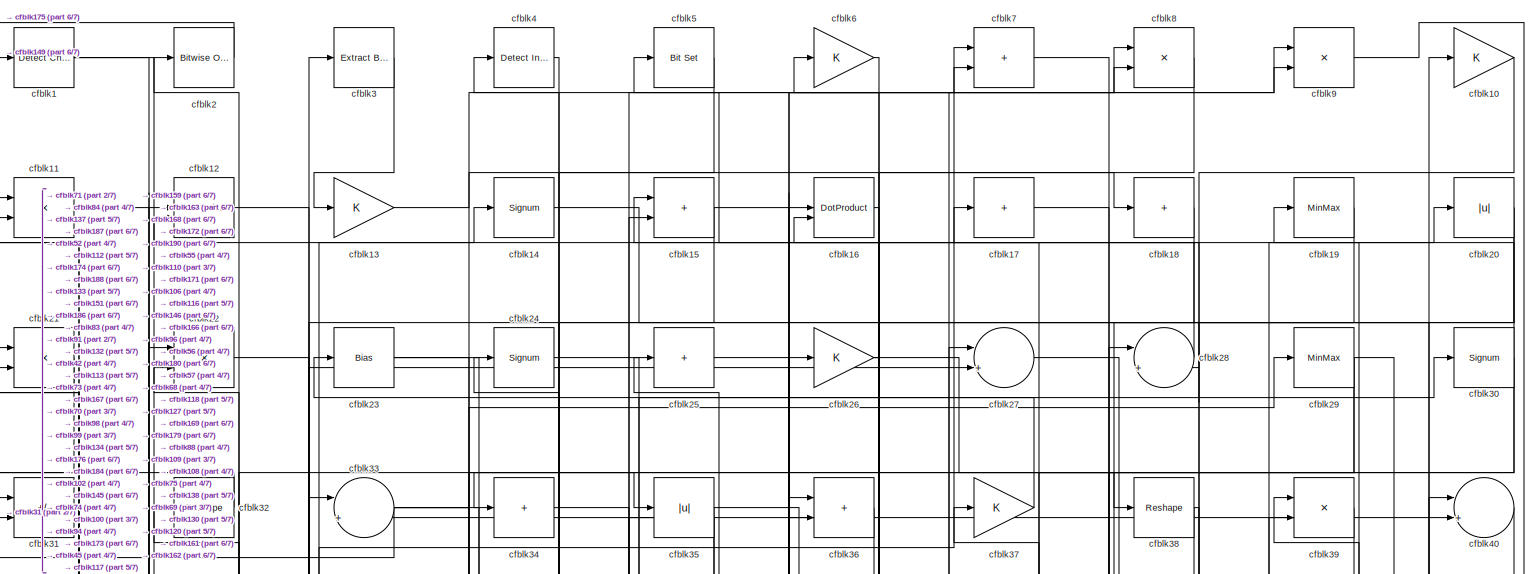
[diagram: root canvas - part 1/7, full width, top band]
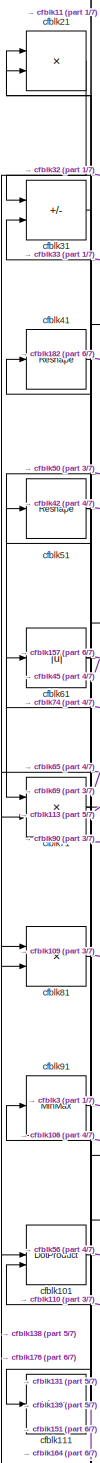
[diagram: root canvas - part 2/7, middle left region]
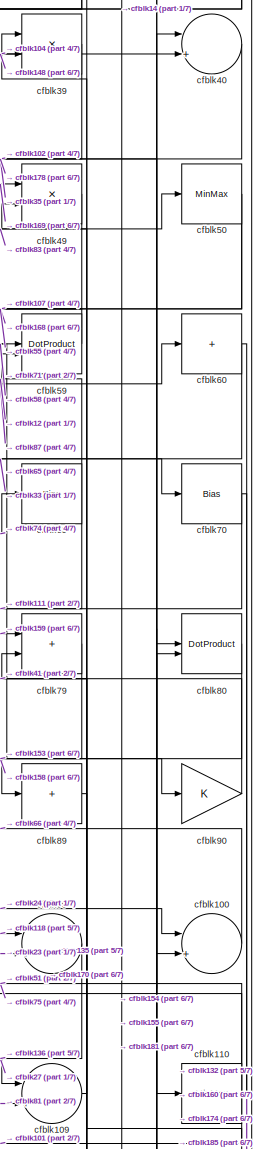
[diagram: root canvas - part 3/7, middle right region]
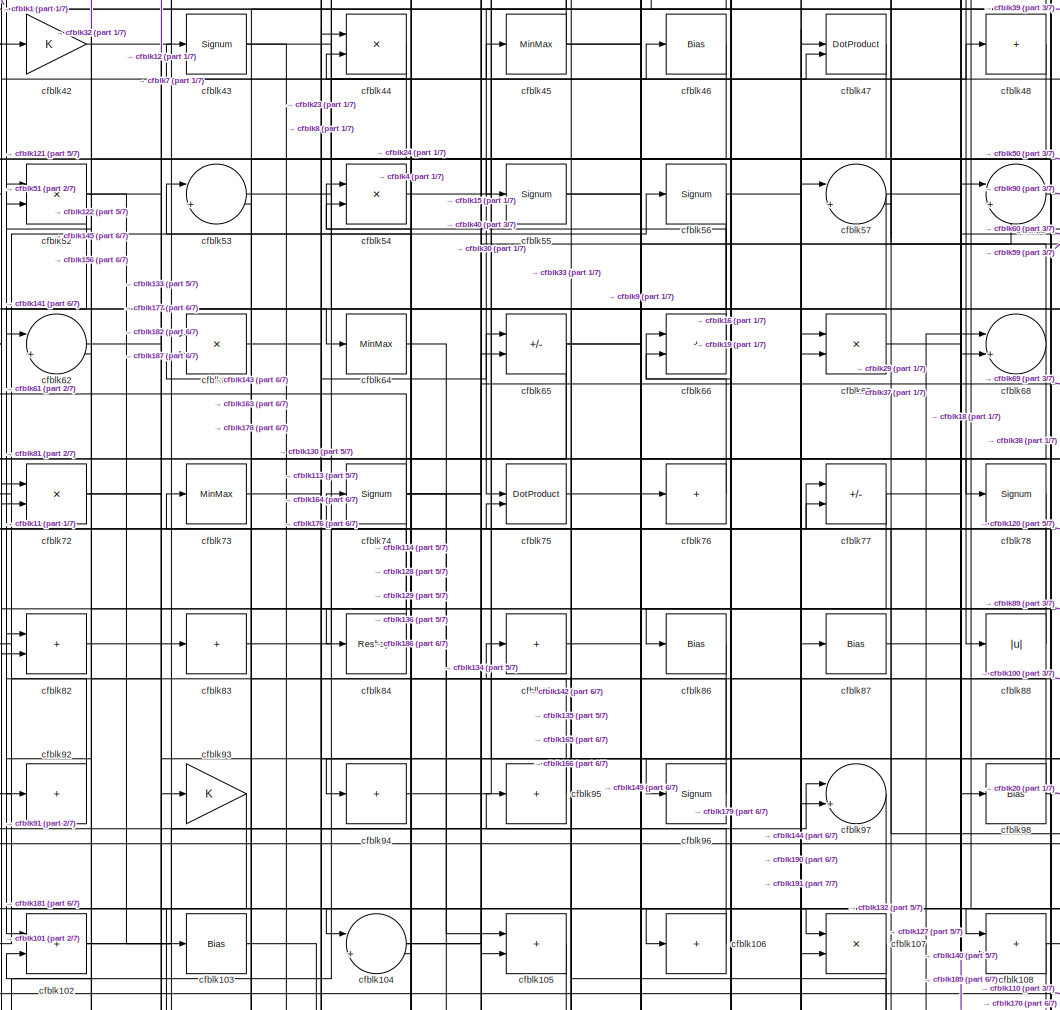
[diagram: root canvas - part 4/7, central region]
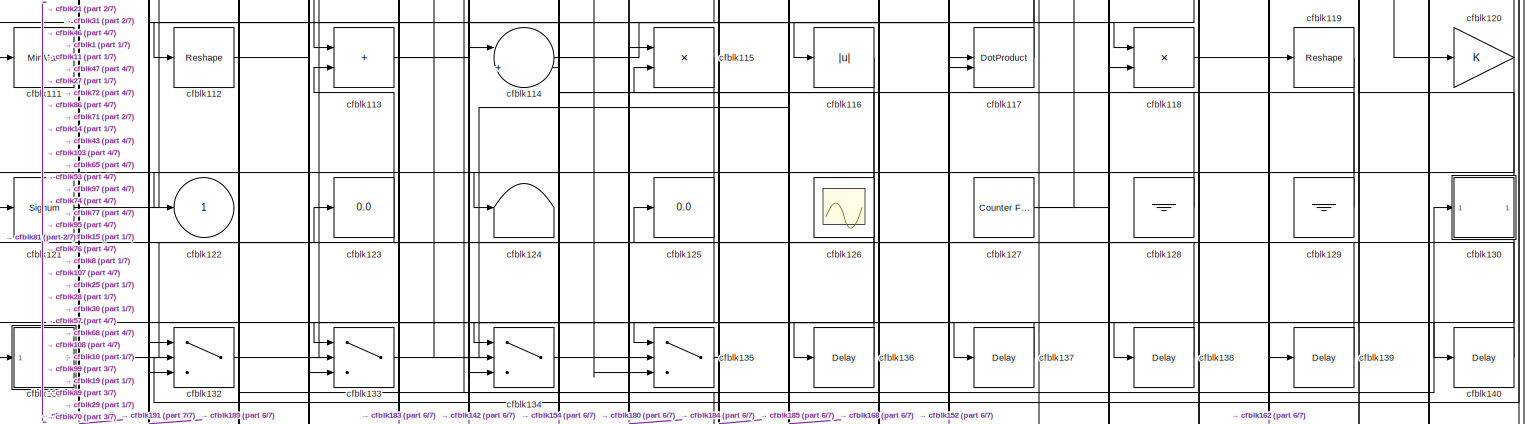
[diagram: root canvas - part 5/7, full width, middle band]
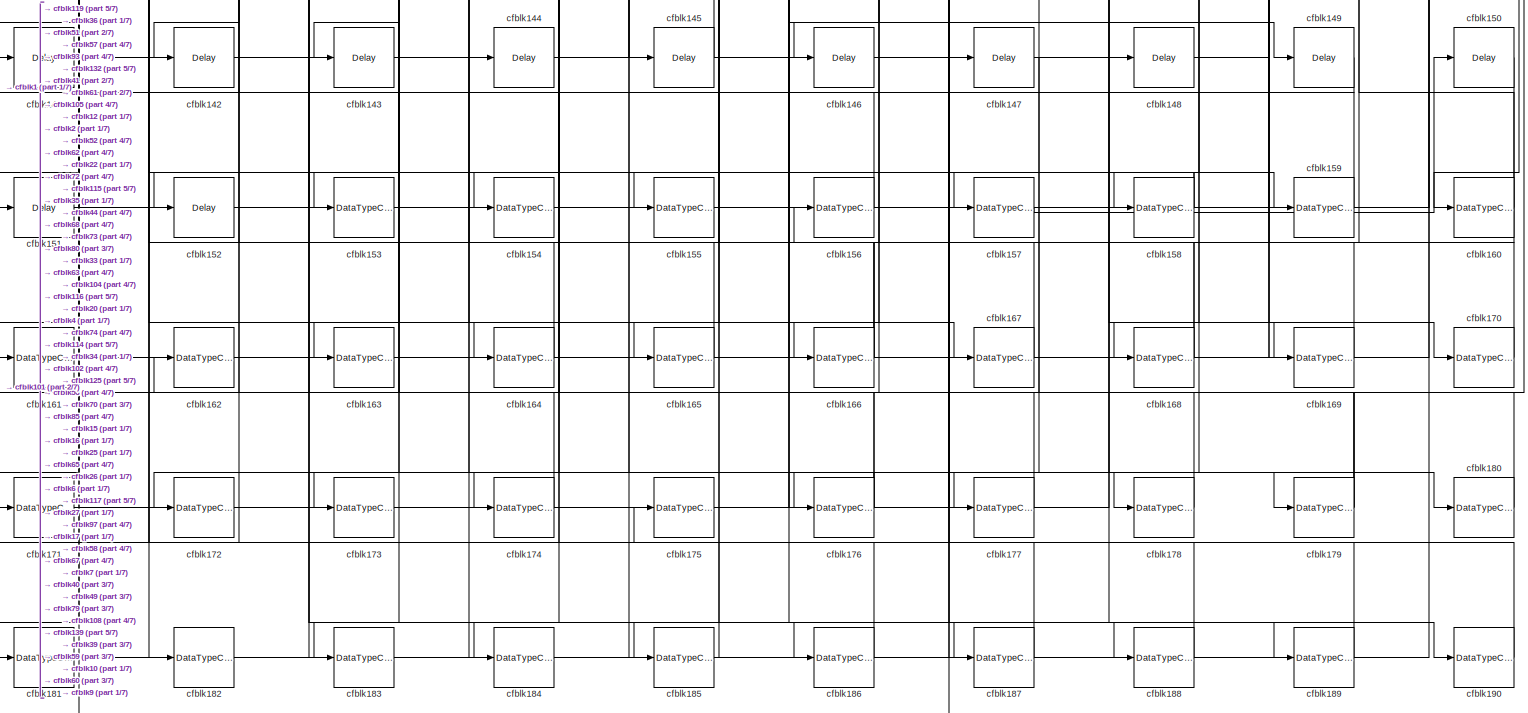
[diagram: root canvas - part 6/7, full width, bottom band]
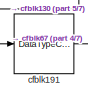
[diagram: root canvas - part 7/7, bottom left region]
MODEL slx_b47de82ab7bd
KIND model
CONFIG AbsTol = auto
CONFIG EnableMultiTasking = off
CONFIG FixedStep = auto
CONFIG MaxStep = auto
CONFIG MinStep = auto
CONFIG RelTol = 1e-3
CONFIG SampleTimeConstraint = Unconstrained
CONFIG SolverName = VariableStepAuto
CONFIG StartTime = 0.0
CONFIG StopTime = 10.0
BLOCK [Reference] cfblk1  REF=simulink/Logic and Bit
Operations/Detect
Change
  LibrarySourceBlock = hdlsllib/Logic and Bit\nOperations/Detect\nChange
  SourceBlock = simulink/Logic and Bit\nOperations/Detect\nChange
  SourceType = Detect Change
BLOCK [Gain] cfblk10
BLOCK [Sum] cfblk100
  Inputs = |++
BLOCK [DotProduct] cfblk101
  OutDataTypeStr = Inherit: Inherit via internal rule
BLOCK [Sum] cfblk102
  IconShape = rectangular
BLOCK [Bias] cfblk103
  Bias = 0.0
  SaturateOnIntegerOverflow = off
BLOCK [Sum] cfblk104
  Inputs = |++
BLOCK [Sum] cfblk105
  IconShape = rectangular
BLOCK [Sum] cfblk106
  IconShape = rectangular
  Inputs = +
BLOCK [Product] cfblk107
  Inputs = */
  RndMeth = Zero
  SaturateOnIntegerOverflow = on
BLOCK [Sum] cfblk108
  IconShape = rectangular
BLOCK [Sum] cfblk109
  Inputs = |++
BLOCK [Product] cfblk11
  Inputs = */
  RndMeth = Zero
  SaturateOnIntegerOverflow = on
BLOCK [MinMax] cfblk110
BLOCK [MinMax] cfblk111
BLOCK [Reshape] cfblk112
BLOCK [Sum] cfblk113
  IconShape = rectangular
BLOCK [Sum] cfblk114
  Inputs = |++
BLOCK [Product] cfblk115
  Inputs = */
  RndMeth = Zero
  SaturateOnIntegerOverflow = on
BLOCK [Abs] cfblk116
  SaturateOnIntegerOverflow = off
BLOCK [DotProduct] cfblk117
  OutDataTypeStr = Inherit: Inherit via internal rule
BLOCK [Product] cfblk118
  Inputs = */
  RndMeth = Zero
  SaturateOnIntegerOverflow = on
BLOCK [Reshape] cfblk119
BLOCK [DotProduct] cfblk12
  OutDataTypeStr = Inherit: Inherit via internal rule
BLOCK [Gain] cfblk120
BLOCK [Signum] cfblk121
BLOCK [Outport] cfblk122
  VectorParamsAs1DForOutWhenUnconnected = off
BLOCK [Display] cfblk123
  Decimation = 1
BLOCK [Terminator] cfblk124
BLOCK [Display] cfblk125
  Decimation = 1
BLOCK [Scope] cfblk126
  Floating = on
  NumInputPorts = 1
  ScopeSpecificationString = Simulink.scopes.TimeScopeBlockCfg('CurrentConfiguration', extmgr.ConfigurationSet(extmgr.Configuration('Core','General UI',true,'FigureColor',[0.156862745098039 0.156862745098039 0.156862745098039]),extmgr.Configuration('Core','Source UI',true),extmgr.Configuration('Sources','WiredSimulink',true,'DataLoggingVariableName','ScopeData1','DataLoggingSaveFormat','StructureWithTime','DataLoggingLimitDat...<+2713ch>
BLOCK [Reference] cfblk127  REF=hdlsllib/Sources/Counter
Free-Running
  SourceBlock = hdlsllib/Sources/Counter\nFree-Running
  SourceType = Counter Free-Running
BLOCK [Ground] cfblk128
BLOCK [Ground] cfblk129
BLOCK [Gain] cfblk13
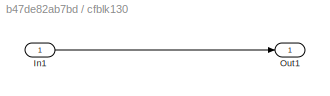
BLOCK [SubSystem] cfblk130
  LibrarySourceBlock = hdlsllib/Ports &\nSubsystems/Subsystem
BLOCK [Inport] cfblk130/In1
BLOCK [Outport] cfblk130/Out1
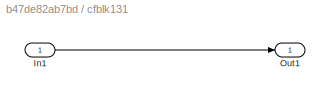
BLOCK [SubSystem] cfblk131
  LibrarySourceBlock = hdlsllib/Ports &\nSubsystems/Subsystem
BLOCK [Inport] cfblk131/In1
BLOCK [Outport] cfblk131/Out1
BLOCK [Switch] cfblk132
  InputSameDT = off
  SaturateOnIntegerOverflow = off
BLOCK [Switch] cfblk133
  InputSameDT = off
  SaturateOnIntegerOverflow = off
BLOCK [Switch] cfblk134
  InputSameDT = off
  SaturateOnIntegerOverflow = off
BLOCK [Switch] cfblk135
  InputSameDT = off
  SaturateOnIntegerOverflow = off
BLOCK [Delay] cfblk136
  InputPortMap = u0
  SampleTime = 1
BLOCK [Delay] cfblk137
  InputPortMap = u0
  SampleTime = 1
BLOCK [Delay] cfblk138
  InputPortMap = u0
  SampleTime = 1
BLOCK [Delay] cfblk139
  InputPortMap = u0
  SampleTime = 1
BLOCK [Signum] cfblk14
BLOCK [Delay] cfblk140
  InputPortMap = u0
  SampleTime = 1
BLOCK [Delay] cfblk141
  InputPortMap = u0
  SampleTime = 1
BLOCK [Delay] cfblk142
  InputPortMap = u0
  SampleTime = 1
BLOCK [Delay] cfblk143
  InputPortMap = u0
  SampleTime = 1
BLOCK [Delay] cfblk144
  InputPortMap = u0
  SampleTime = 1
BLOCK [Delay] cfblk145
  InputPortMap = u0
  SampleTime = 1
BLOCK [Delay] cfblk146
  InputPortMap = u0
  SampleTime = 1
BLOCK [Delay] cfblk147
  InputPortMap = u0
  SampleTime = 1
BLOCK [Delay] cfblk148
  InputPortMap = u0
  SampleTime = 1
BLOCK [Delay] cfblk149
  InputPortMap = u0
  SampleTime = 1
BLOCK [Sum] cfblk15
  IconShape = rectangular
BLOCK [Delay] cfblk150
  InputPortMap = u0
  SampleTime = 1
BLOCK [Delay] cfblk151
  InputPortMap = u0
  SampleTime = 1
BLOCK [Delay] cfblk152
  InputPortMap = u0
  SampleTime = 1
BLOCK [DataTypeConversion] cfblk153
  OutDataTypeStr = uint8
  RndMeth = Floor
  SaturateOnIntegerOverflow = off
BLOCK [DataTypeConversion] cfblk154
  OutDataTypeStr = uint8
  RndMeth = Floor
  SaturateOnIntegerOverflow = off
BLOCK [DataTypeConversion] cfblk155
  OutDataTypeStr = uint8
  RndMeth = Floor
  SaturateOnIntegerOverflow = off
BLOCK [DataTypeConversion] cfblk156
  OutDataTypeStr = uint8
  RndMeth = Floor
  SaturateOnIntegerOverflow = off
BLOCK [DataTypeConversion] cfblk157
  OutDataTypeStr = uint8
  RndMeth = Floor
  SaturateOnIntegerOverflow = off
BLOCK [DataTypeConversion] cfblk158
  RndMeth = Floor
  SaturateOnIntegerOverflow = off
BLOCK [DataTypeConversion] cfblk159
  OutDataTypeStr = uint8
  RndMeth = Floor
  SaturateOnIntegerOverflow = off
BLOCK [DotProduct] cfblk16
  OutDataTypeStr = Inherit: Inherit via internal rule
BLOCK [DataTypeConversion] cfblk160
  OutDataTypeStr = uint8
  RndMeth = Floor
  SaturateOnIntegerOverflow = off
BLOCK [DataTypeConversion] cfblk161
  RndMeth = Floor
  SaturateOnIntegerOverflow = off
BLOCK [DataTypeConversion] cfblk162
  OutDataTypeStr = uint8
  RndMeth = Floor
  SaturateOnIntegerOverflow = off
BLOCK [DataTypeConversion] cfblk163
  OutDataTypeStr = uint8
  RndMeth = Floor
  SaturateOnIntegerOverflow = off
BLOCK [DataTypeConversion] cfblk164
  OutDataTypeStr = uint8
  RndMeth = Floor
  SaturateOnIntegerOverflow = off
BLOCK [DataTypeConversion] cfblk165
  OutDataTypeStr = uint8
  RndMeth = Floor
  SaturateOnIntegerOverflow = off
BLOCK [DataTypeConversion] cfblk166
  RndMeth = Floor
  SaturateOnIntegerOverflow = off
BLOCK [DataTypeConversion] cfblk167
  OutDataTypeStr = uint8
  RndMeth = Floor
  SaturateOnIntegerOverflow = off
BLOCK [DataTypeConversion] cfblk168
  RndMeth = Floor
  SaturateOnIntegerOverflow = off
BLOCK [DataTypeConversion] cfblk169
  OutDataTypeStr = uint8
  RndMeth = Floor
  SaturateOnIntegerOverflow = off
BLOCK [Sum] cfblk17
  IconShape = rectangular
  Inputs = +
BLOCK [DataTypeConversion] cfblk170
  OutDataTypeStr = uint8
  RndMeth = Floor
  SaturateOnIntegerOverflow = off
BLOCK [DataTypeConversion] cfblk171
  RndMeth = Floor
  SaturateOnIntegerOverflow = off
BLOCK [DataTypeConversion] cfblk172
  OutDataTypeStr = uint8
  RndMeth = Floor
  SaturateOnIntegerOverflow = off
BLOCK [DataTypeConversion] cfblk173
  OutDataTypeStr = uint8
  RndMeth = Floor
  SaturateOnIntegerOverflow = off
BLOCK [DataTypeConversion] cfblk174
  OutDataTypeStr = boolean
  RndMeth = Floor
  SaturateOnIntegerOverflow = off
BLOCK [DataTypeConversion] cfblk175
  OutDataTypeStr = uint8
  RndMeth = Floor
  SaturateOnIntegerOverflow = off
BLOCK [DataTypeConversion] cfblk176
  RndMeth = Floor
  SaturateOnIntegerOverflow = off
BLOCK [DataTypeConversion] cfblk177
  OutDataTypeStr = uint8
  RndMeth = Floor
  SaturateOnIntegerOverflow = off
BLOCK [DataTypeConversion] cfblk178
  OutDataTypeStr = uint8
  RndMeth = Floor
  SaturateOnIntegerOverflow = off
BLOCK [DataTypeConversion] cfblk179
  RndMeth = Floor
  SaturateOnIntegerOverflow = off
BLOCK [Sum] cfblk18
  IconShape = rectangular
  Inputs = +
BLOCK [DataTypeConversion] cfblk180
  OutDataTypeStr = uint8
  RndMeth = Floor
  SaturateOnIntegerOverflow = off
BLOCK [DataTypeConversion] cfblk181
  RndMeth = Floor
  SaturateOnIntegerOverflow = off
BLOCK [DataTypeConversion] cfblk182
  OutDataTypeStr = uint8
  RndMeth = Floor
  SaturateOnIntegerOverflow = off
BLOCK [DataTypeConversion] cfblk183
  OutDataTypeStr = uint8
  RndMeth = Floor
  SaturateOnIntegerOverflow = off
BLOCK [DataTypeConversion] cfblk184
  OutDataTypeStr = uint8
  RndMeth = Floor
  SaturateOnIntegerOverflow = off
BLOCK [DataTypeConversion] cfblk185
  OutDataTypeStr = uint8
  RndMeth = Floor
  SaturateOnIntegerOverflow = off
BLOCK [DataTypeConversion] cfblk186
  OutDataTypeStr = uint8
  RndMeth = Floor
  SaturateOnIntegerOverflow = off
BLOCK [DataTypeConversion] cfblk187
  OutDataTypeStr = uint8
  RndMeth = Floor
  SaturateOnIntegerOverflow = off
BLOCK [DataTypeConversion] cfblk188
  OutDataTypeStr = uint8
  RndMeth = Floor
  SaturateOnIntegerOverflow = off
BLOCK [DataTypeConversion] cfblk189
  OutDataTypeStr = uint8
  RndMeth = Floor
  SaturateOnIntegerOverflow = off
BLOCK [MinMax] cfblk19
BLOCK [DataTypeConversion] cfblk190
  OutDataTypeStr = uint8
  RndMeth = Floor
  SaturateOnIntegerOverflow = off
BLOCK [DataTypeConversion] cfblk191
  OutDataTypeStr = uint8
  RndMeth = Floor
  SaturateOnIntegerOverflow = off
BLOCK [Reference] cfblk2  REF=simulink/Logic and Bit
Operations/Bitwise
Operator
  LibrarySourceBlock = hdlsllib/Logic and Bit\nOperations/Bitwise\nOperator
  SourceBlock = simulink/Logic and Bit\nOperations/Bitwise\nOperator
  SourceType = Bitwise Operator
BLOCK [Abs] cfblk20
  SaturateOnIntegerOverflow = off
BLOCK [Product] cfblk21
  Inputs = */
  RndMeth = Zero
  SaturateOnIntegerOverflow = on
BLOCK [Product] cfblk22
  Inputs = */
  RndMeth = Zero
  SaturateOnIntegerOverflow = on
BLOCK [Bias] cfblk23
  Bias = 0.0
  SaturateOnIntegerOverflow = off
BLOCK [Signum] cfblk24
BLOCK [Sum] cfblk25
  IconShape = rectangular
  Inputs = +
BLOCK [Gain] cfblk26
BLOCK [Sum] cfblk27
  Inputs = |++
BLOCK [Sum] cfblk28
  Inputs = |++
BLOCK [MinMax] cfblk29
BLOCK [Reference] cfblk3  REF=simulink/Logic and Bit
Operations/Extract Bits
  LibrarySourceBlock = hdlsllib/Logic and Bit\nOperations/Extract Bits
  SourceBlock = simulink/Logic and Bit\nOperations/Extract Bits
  SourceType = Extract Bits
BLOCK [Signum] cfblk30
BLOCK [Sum] cfblk31
  IconShape = rectangular
  Inputs = +-
BLOCK [Reshape] cfblk32
BLOCK [Sum] cfblk33
  Inputs = |++
BLOCK [Sum] cfblk34
  IconShape = rectangular
  Inputs = +
BLOCK [Abs] cfblk35
  SaturateOnIntegerOverflow = off
BLOCK [Sum] cfblk36
  IconShape = rectangular
BLOCK [Gain] cfblk37
BLOCK [Reshape] cfblk38
BLOCK [Product] cfblk39
  Inputs = */
  RndMeth = Zero
  SaturateOnIntegerOverflow = on
BLOCK [Reference] cfblk4  REF=simulink/Logic and Bit
Operations/Detect
Increase
  LibrarySourceBlock = hdlsllib/Logic and Bit\nOperations/Detect\nIncrease
  SourceBlock = simulink/Logic and Bit\nOperations/Detect\nIncrease
  SourceType = Detect Increase
BLOCK [Sum] cfblk40
  Inputs = |++
BLOCK [Reshape] cfblk41
BLOCK [Gain] cfblk42
BLOCK [Signum] cfblk43
BLOCK [Product] cfblk44
  Inputs = */
  RndMeth = Zero
  SaturateOnIntegerOverflow = on
BLOCK [MinMax] cfblk45
BLOCK [Bias] cfblk46
  Bias = 0.0
  SaturateOnIntegerOverflow = off
BLOCK [DotProduct] cfblk47
  OutDataTypeStr = Inherit: Inherit via internal rule
BLOCK [Sum] cfblk48
  IconShape = rectangular
  Inputs = +
BLOCK [Product] cfblk49
  Inputs = */
  RndMeth = Zero
  SaturateOnIntegerOverflow = on
BLOCK [Reference] cfblk5  REF=simulink/Logic and Bit
Operations/Bit Set
  LibrarySourceBlock = hdlsllib/Logic and Bit\nOperations/Bit Set
  SourceBlock = simulink/Logic and Bit\nOperations/Bit Set
  SourceType = Bit Set
BLOCK [MinMax] cfblk50
BLOCK [Reshape] cfblk51
BLOCK [Product] cfblk52
  Inputs = */
  RndMeth = Zero
  SaturateOnIntegerOverflow = on
BLOCK [Sum] cfblk53
  Inputs = |++
BLOCK [Product] cfblk54
  Inputs = */
  RndMeth = Zero
  SaturateOnIntegerOverflow = on
BLOCK [Signum] cfblk55
BLOCK [Signum] cfblk56
BLOCK [Sum] cfblk57
  Inputs = |++
BLOCK [Sum] cfblk58
  Inputs = |++
BLOCK [DotProduct] cfblk59
  OutDataTypeStr = Inherit: Inherit via internal rule
BLOCK [Gain] cfblk6
BLOCK [Sum] cfblk60
  IconShape = rectangular
  Inputs = +
BLOCK [Abs] cfblk61
  SaturateOnIntegerOverflow = off
BLOCK [Sum] cfblk62
  Inputs = |++
BLOCK [Product] cfblk63
  Inputs = */
  RndMeth = Zero
  SaturateOnIntegerOverflow = on
BLOCK [MinMax] cfblk64
BLOCK [Sum] cfblk65
  IconShape = rectangular
  Inputs = +-
BLOCK [Sum] cfblk66
  IconShape = rectangular
BLOCK [Product] cfblk67
  Inputs = */
  RndMeth = Zero
  SaturateOnIntegerOverflow = on
BLOCK [Sum] cfblk68
  Inputs = |++
BLOCK [Bias] cfblk69
  Bias = 0.0
  SaturateOnIntegerOverflow = off
BLOCK [Sum] cfblk7
  IconShape = rectangular
BLOCK [Bias] cfblk70
  Bias = 0.0
  SaturateOnIntegerOverflow = off
BLOCK [Product] cfblk71
  Inputs = */
  RndMeth = Zero
  SaturateOnIntegerOverflow = on
BLOCK [Product] cfblk72
  Inputs = */
  RndMeth = Zero
  SaturateOnIntegerOverflow = on
BLOCK [MinMax] cfblk73
BLOCK [Signum] cfblk74
BLOCK [DotProduct] cfblk75
  OutDataTypeStr = Inherit: Inherit via internal rule
BLOCK [Sum] cfblk76
  IconShape = rectangular
  Inputs = +
BLOCK [Sum] cfblk77
  IconShape = rectangular
  Inputs = +-
BLOCK [Signum] cfblk78
BLOCK [Sum] cfblk79
  IconShape = rectangular
BLOCK [Product] cfblk8
  Inputs = */
  RndMeth = Zero
  SaturateOnIntegerOverflow = on
BLOCK [DotProduct] cfblk80
  OutDataTypeStr = Inherit: Inherit via internal rule
BLOCK [Product] cfblk81
  Inputs = */
  RndMeth = Zero
  SaturateOnIntegerOverflow = on
BLOCK [Sum] cfblk82
  IconShape = rectangular
BLOCK [Sum] cfblk83
  IconShape = rectangular
  Inputs = +
BLOCK [Reshape] cfblk84
BLOCK [Sum] cfblk85
  IconShape = rectangular
  Inputs = +
BLOCK [Bias] cfblk86
  Bias = 0.0
  SaturateOnIntegerOverflow = off
BLOCK [Bias] cfblk87
  Bias = 0.0
  SaturateOnIntegerOverflow = off
BLOCK [Abs] cfblk88
  SaturateOnIntegerOverflow = off
BLOCK [Sum] cfblk89
  IconShape = rectangular
  Inputs = +
BLOCK [Product] cfblk9
  Inputs = */
  RndMeth = Zero
  SaturateOnIntegerOverflow = on
BLOCK [Gain] cfblk90
BLOCK [MinMax] cfblk91
BLOCK [Sum] cfblk92
  IconShape = rectangular
  Inputs = +
BLOCK [Gain] cfblk93
BLOCK [Sum] cfblk94
  IconShape = rectangular
  Inputs = +
BLOCK [Sum] cfblk95
  IconShape = rectangular
  Inputs = +
BLOCK [Signum] cfblk96
BLOCK [Sum] cfblk97
  Inputs = |++
BLOCK [Bias] cfblk98
  Bias = 0.0
  SaturateOnIntegerOverflow = off
BLOCK [Sum] cfblk99
  Inputs = |++
LINE cfblk100:1 -> cfblk66:2
LINE cfblk101:1 -> cfblk56:1
NET cfblk102:1 -> cfblk15:2, cfblk97:1
LINE cfblk103:1 -> cfblk130:1
NET cfblk104:1 -> cfblk40:2, cfblk58:2
LINE cfblk105:1 -> cfblk142:1
LINE cfblk106:1 -> cfblk91:1
LINE cfblk107:1 -> cfblk132:3
NET cfblk108:1 -> cfblk134:3, cfblk170:1
LINE cfblk109:1 -> cfblk39:1
LINE cfblk10:1 -> cfblk138:1
NET cfblk110:1 -> cfblk101:2, cfblk51:1, cfblk75:2
LINE cfblk111:1 -> cfblk21:1
LINE cfblk112:1 -> cfblk27:2
NET cfblk113:1 -> cfblk29:1, cfblk65:1
NET cfblk114:1 -> cfblk118:1, cfblk180:1
LINE cfblk115:1 -> cfblk183:1
LINE cfblk116:1 -> cfblk154:1
LINE cfblk117:1 -> cfblk25:1
LINE cfblk118:1 -> cfblk99:1
LINE cfblk119:1 -> cfblk161:1
LINE cfblk11:1 -> cfblk137:1
NET cfblk120:1 -> cfblk124:1, cfblk77:2
LINE cfblk121:1 -> cfblk47:1
NET cfblk127:1 -> cfblk28:1, cfblk68:1
LINE cfblk128:1 -> cfblk43:1
LINE cfblk129:1 -> cfblk53:1
LINE cfblk12:1 -> cfblk83:1
LINE cfblk130/In1:1 -> cfblk130/Out1:1
NET cfblk130:1 -> cfblk191:1, cfblk19:1
LINE cfblk131/In1:1 -> cfblk131/Out1:1
LINE cfblk131:1 -> cfblk123:1
LINE cfblk132:1 -> cfblk14:1
LINE cfblk133:1 -> cfblk76:1
LINE cfblk134:1 -> cfblk77:1
LINE cfblk135:1 -> cfblk95:1
LINE cfblk136:1 -> cfblk72:1
LINE cfblk137:1 -> cfblk133:1
LINE cfblk138:1 -> cfblk81:1
LINE cfblk139:1 -> cfblk21:2
LINE cfblk13:1 -> cfblk18:1
LINE cfblk140:1 -> cfblk113:2
LINE cfblk141:1 -> cfblk65:2
LINE cfblk142:1 -> cfblk114:1
LINE cfblk143:1 -> cfblk58:1
LINE cfblk144:1 -> cfblk97:2
LINE cfblk145:1 -> cfblk102:2
LINE cfblk146:1 -> cfblk188:1
LINE cfblk147:1 -> cfblk177:1
LINE cfblk148:1 -> cfblk39:2
LINE cfblk149:1 -> cfblk1:1
LINE cfblk14:1 -> cfblk100:2
LINE cfblk150:1 -> cfblk156:1
LINE cfblk151:1 -> cfblk33:1
LINE cfblk152:1 -> cfblk117:1
LINE cfblk153:1 -> cfblk59:1
LINE cfblk154:1 -> cfblk80:1
LINE cfblk155:1 -> cfblk80:2
LINE cfblk156:1 -> cfblk52:2
LINE cfblk157:1 -> cfblk150:1
NET cfblk158:1 -> cfblk152:1, cfblk155:1
LINE cfblk159:1 -> cfblk79:1
NET cfblk15:1 -> cfblk133:3, cfblk190:1
LINE cfblk160:1 -> cfblk79:2
NET cfblk161:1 -> cfblk10:1, cfblk139:1
LINE cfblk162:1 -> cfblk119:1
LINE cfblk163:1 -> cfblk26:1
LINE cfblk164:1 -> cfblk44:1
LINE cfblk165:1 -> cfblk44:2
NET cfblk166:1 -> cfblk12:1, cfblk62:2, cfblk85:1
LINE cfblk167:1 -> cfblk6:1
NET cfblk168:1 -> cfblk125:1, cfblk16:1
LINE cfblk169:1 -> cfblk49:1
LINE cfblk16:1 -> cfblk106:1
LINE cfblk170:1 -> cfblk49:2
NET cfblk171:1 -> cfblk147:1, cfblk148:1
LINE cfblk172:1 -> cfblk36:1
LINE cfblk173:1 -> cfblk36:2
LINE cfblk174:1 -> cfblk2:1
LINE cfblk175:1 -> cfblk27:1
NET cfblk176:1 -> cfblk101:1, cfblk172:1, cfblk4:1
LINE cfblk177:1 -> cfblk63:1
LINE cfblk178:1 -> cfblk63:2
NET cfblk179:1 -> cfblk104:2, cfblk16:2, cfblk73:1
LINE cfblk17:1 -> cfblk179:1
LINE cfblk180:1 -> cfblk17:1
NET cfblk181:1 -> cfblk40:1, cfblk57:1
LINE cfblk182:1 -> cfblk93:1
LINE cfblk183:1 -> cfblk144:1
LINE cfblk184:1 -> cfblk115:1
LINE cfblk185:1 -> cfblk115:2
LINE cfblk186:1 -> cfblk74:1
LINE cfblk187:1 -> cfblk22:1
LINE cfblk188:1 -> cfblk22:2
LINE cfblk189:1 -> cfblk132:1
LINE cfblk18:1 -> cfblk88:1
LINE cfblk190:1 -> cfblk67:1
LINE cfblk191:1 -> cfblk67:2
LINE cfblk19:1 -> cfblk96:1
NET cfblk1:1 -> cfblk117:2, cfblk52:1
NET cfblk20:1 -> cfblk184:1, cfblk28:2
LINE cfblk21:1 -> cfblk71:2
LINE cfblk22:1 -> cfblk186:1
NET cfblk23:1 -> cfblk98:1, cfblk99:2
LINE cfblk24:1 -> cfblk100:1
LINE cfblk25:1 -> cfblk159:1
NET cfblk26:1 -> cfblk146:1, cfblk38:1
LINE cfblk27:1 -> cfblk109:1
LINE cfblk28:1 -> cfblk15:1
NET cfblk29:1 -> cfblk112:1, cfblk120:1, cfblk57:2
LINE cfblk2:1 -> cfblk175:1
NET cfblk30:1 -> cfblk118:2, cfblk134:1, cfblk5:1
LINE cfblk31:1 -> cfblk131:1
LINE cfblk32:1 -> cfblk31:1
NET cfblk33:1 -> cfblk167:1, cfblk31:2, cfblk35:1, cfblk70:1
LINE cfblk34:1 -> cfblk145:1
NET cfblk35:1 -> cfblk110:1, cfblk173:1
LINE cfblk36:1 -> cfblk171:1
LINE cfblk37:1 -> cfblk23:1
NET cfblk38:1 -> cfblk108:1, cfblk75:1
LINE cfblk39:1 -> cfblk102:1
LINE cfblk3:1 -> cfblk13:1
LINE cfblk40:1 -> cfblk178:1
LINE cfblk41:1 -> cfblk182:1
LINE cfblk42:1 -> cfblk7:1
NET cfblk43:1 -> cfblk134:2, cfblk87:1
LINE cfblk44:1 -> cfblk163:1
NET cfblk45:1 -> cfblk108:2, cfblk33:2, cfblk7:2
LINE cfblk46:1 -> cfblk121:1
LINE cfblk47:1 -> cfblk122:1
LINE cfblk48:1 -> cfblk84:1
LINE cfblk49:1 -> cfblk168:1
LINE cfblk4:1 -> cfblk94:1
NET cfblk50:1 -> cfblk107:2, cfblk71:1
NET cfblk51:1 -> cfblk151:1, cfblk164:1, cfblk42:1
NET cfblk52:1 -> cfblk103:1, cfblk107:1, cfblk72:2
LINE cfblk53:1 -> cfblk46:1
LINE cfblk54:1 -> cfblk48:1
NET cfblk55:1 -> cfblk78:1, cfblk9:2
NET cfblk56:1 -> cfblk165:1, cfblk62:1, cfblk9:1
NET cfblk57:1 -> cfblk140:1, cfblk141:1
LINE cfblk58:1 -> cfblk90:1
LINE cfblk59:1 -> cfblk55:1
LINE cfblk5:1 -> cfblk34:1
NET cfblk60:1 -> cfblk160:1, cfblk174:1
NET cfblk61:1 -> cfblk157:1, cfblk45:1
LINE cfblk62:1 -> cfblk64:1
LINE cfblk63:1 -> cfblk176:1
LINE cfblk64:1 -> cfblk105:1
NET cfblk65:1 -> cfblk104:1, cfblk149:1, cfblk59:2, cfblk81:2
LINE cfblk66:1 -> cfblk54:1
LINE cfblk67:1 -> cfblk189:1
NET cfblk68:1 -> cfblk143:1, cfblk37:1
NET cfblk69:1 -> cfblk111:1, cfblk12:2
LINE cfblk6:1 -> cfblk166:1
NET cfblk70:1 -> cfblk132:2, cfblk185:1
NET cfblk71:1 -> cfblk113:1, cfblk11:2
NET cfblk72:1 -> cfblk135:2, cfblk187:1
LINE cfblk73:1 -> cfblk8:1
NET cfblk74:1 -> cfblk135:3, cfblk61:1, cfblk69:1, cfblk8:2, cfblk92:1
LINE cfblk75:1 -> cfblk89:1
LINE cfblk76:1 -> cfblk66:1
NET cfblk77:1 -> cfblk68:2, cfblk82:2
LINE cfblk78:1 -> cfblk86:1
LINE cfblk79:1 -> cfblk158:1
LINE cfblk7:1 -> cfblk169:1
LINE cfblk80:1 -> cfblk153:1
LINE cfblk81:1 -> cfblk109:2
LINE cfblk82:1 -> cfblk105:2
LINE cfblk83:1 -> cfblk50:1
LINE cfblk84:1 -> cfblk11:1
LINE cfblk85:1 -> cfblk47:2
LINE cfblk86:1 -> cfblk133:2
LINE cfblk87:1 -> cfblk60:1
LINE cfblk88:1 -> cfblk54:2
LINE cfblk89:1 -> cfblk135:1
LINE cfblk8:1 -> cfblk116:1
LINE cfblk90:1 -> cfblk41:1
LINE cfblk91:1 -> cfblk3:1
LINE cfblk92:1 -> cfblk82:1
LINE cfblk93:1 -> cfblk181:1
LINE cfblk94:1 -> cfblk30:1
LINE cfblk95:1 -> cfblk53:2
LINE cfblk96:1 -> cfblk24:1
LINE cfblk97:1 -> cfblk114:2
NET cfblk98:1 -> cfblk20:1, cfblk32:1
LINE cfblk99:1 -> cfblk136:1
LINE cfblk9:1 -> cfblk162:1
note: NET lines group one-source signal fan-out (src -> all destinations, sorted); 1:1 wires keep LINE
